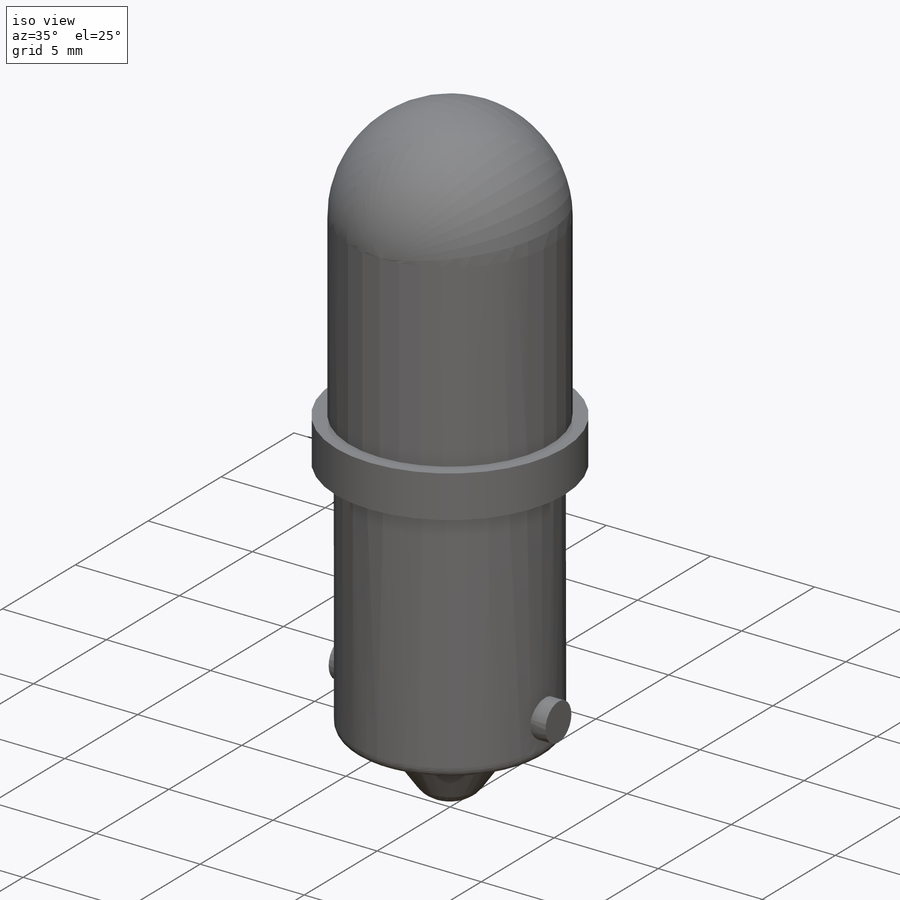
[diagram: iso view]
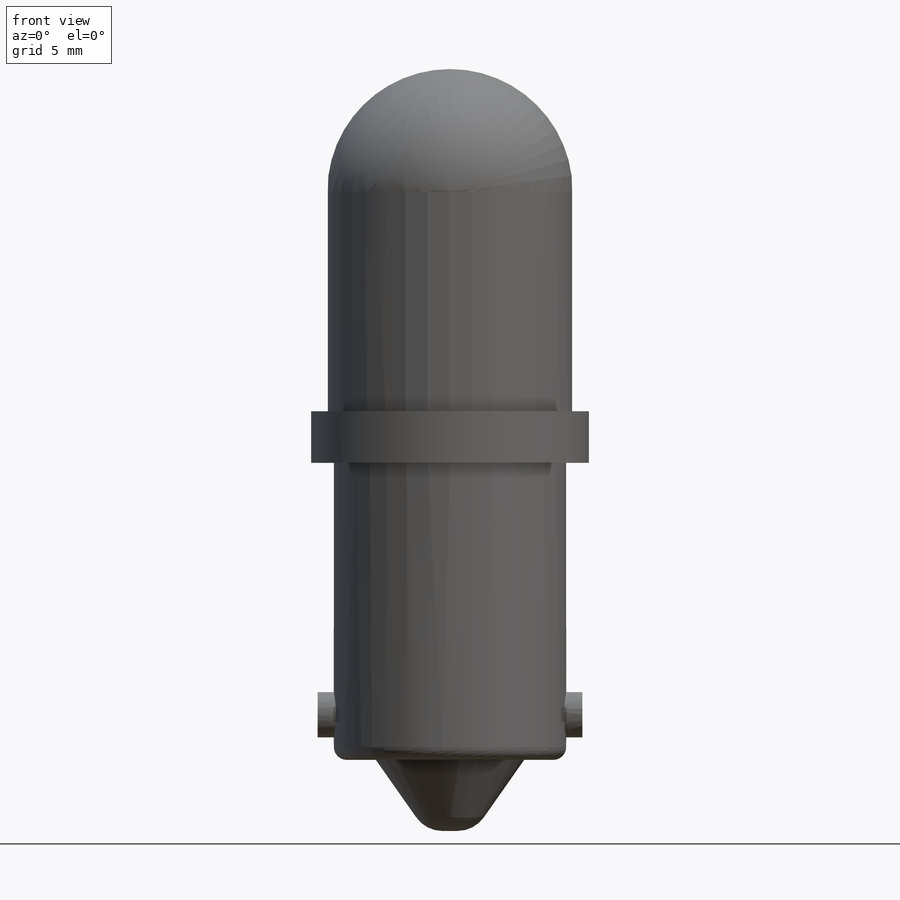
[diagram: front view]
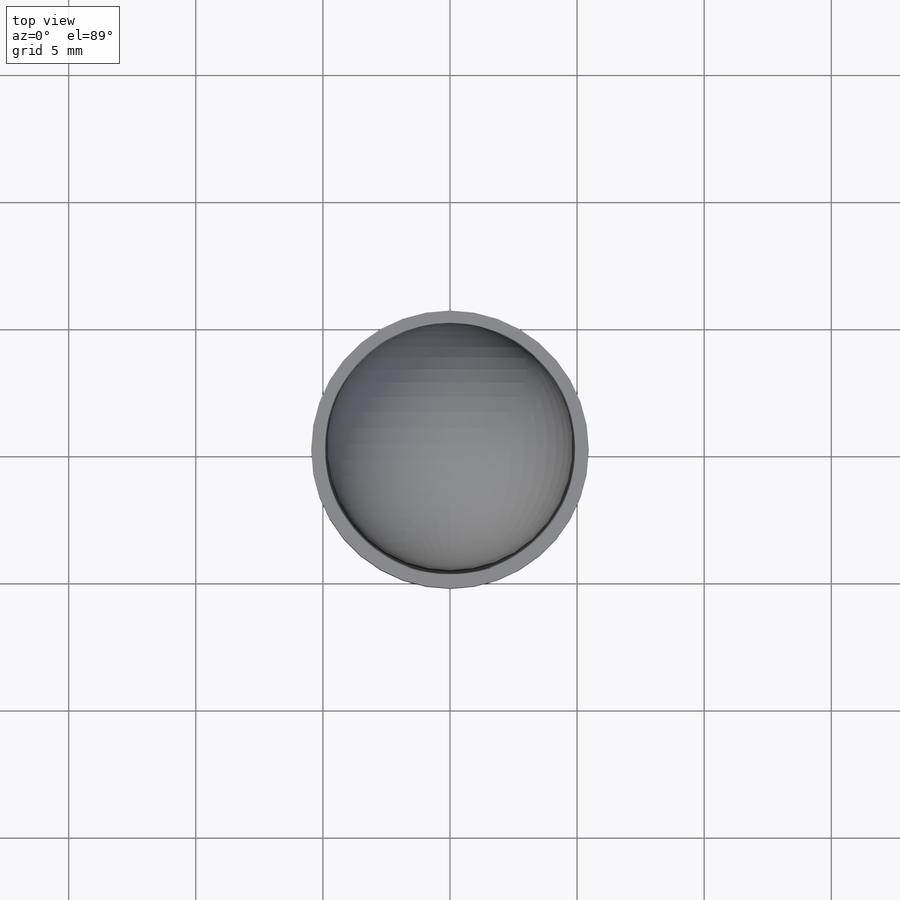
[diagram: top view]
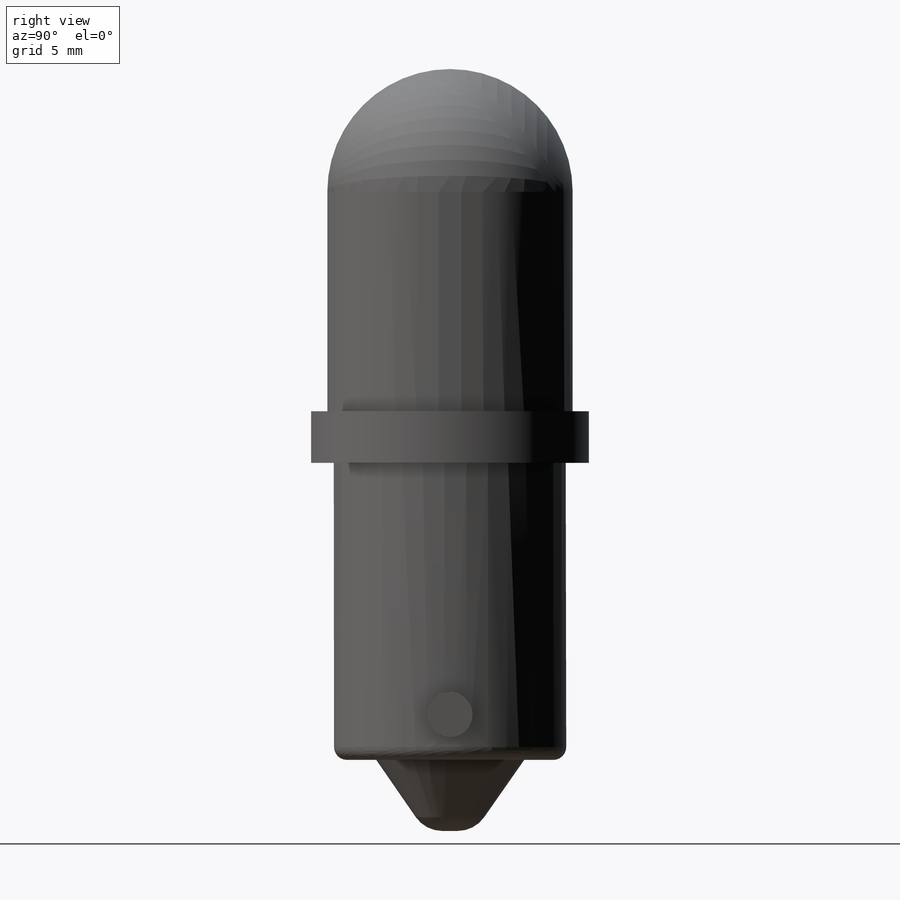
[diagram: right view]
SOLIDWORKS PART (.sldprt)
format: sldprt  version: not decoded by parser v0  size: 240,128 bytes
history: native  units: mm
features: sketch x5, extrude x5, fillet x3, material x1 (+13 scaffold rows collapsed)
feature tree (27):
  scaffold x13  (default folders/planes/origin — collapsed)
  material  "Material <not specified>"
  sketch  "Sketch2"  dims[D1=9.652mm]
  extrude  "Boss-Extrude1"  Depth=15.494mm
  fillet  "Fillet1"  Radius=4.826mm
  sketch  "Sketch3"  dims[D1=10.922mm]
  extrude  "Boss-Extrude2"  Depth=2.032mm
  sketch  "Sketch4"  dims[D1=9.144mm]
  extrude  "Boss-Extrude3"  Depth=11.684mm
  sketch  "Sketch5"  dims[D1=5.842mm]
  extrude  "Boss-Extrude4"  Depth=2.794mm
  fillet  "Fillet2"  Radius=1.27mm
  fillet  "Fillet3"  Radius=0.508mm
  sketch  "Sketch6"  dims[D2=1.778mm D1=9.906mm]
  extrude  "Boss-Extrude5"  Depth=10.414mm
decode coverage: 13 of 13 modeling features carry decoded parameters
note: suppression state not decoded; provenance and decode notes live in map.json
